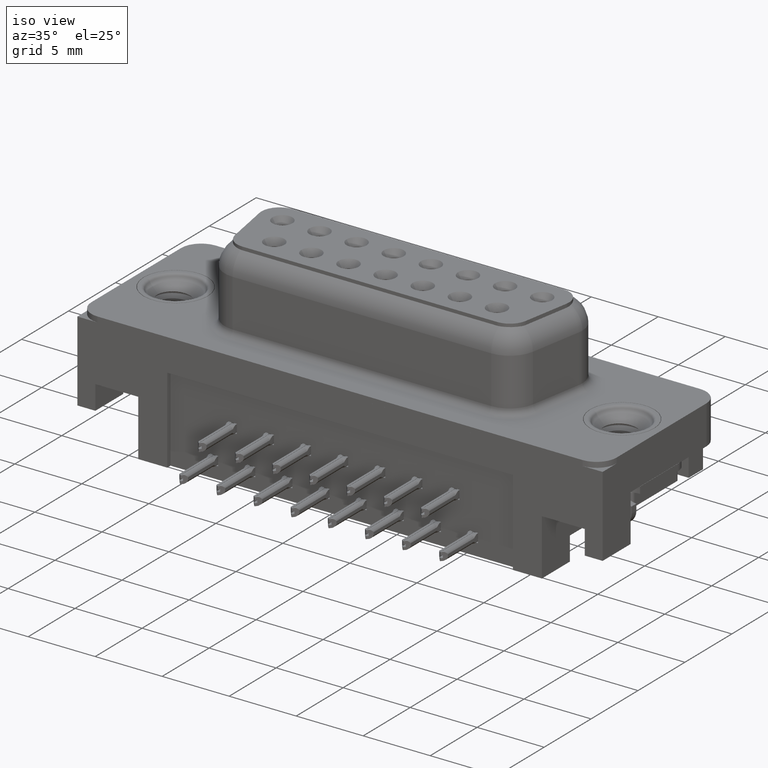
[diagram: clean part render]
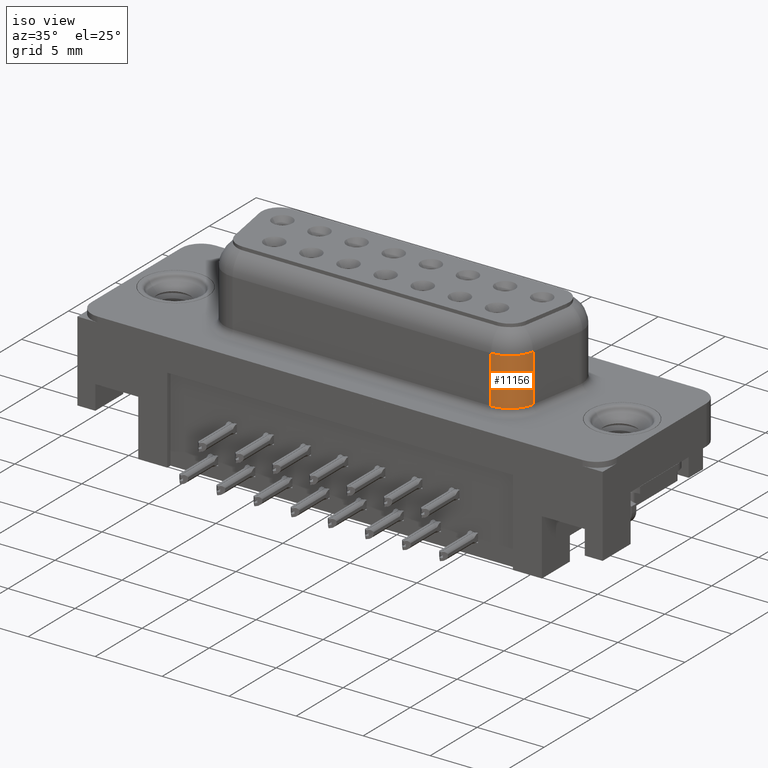
[diagram: same view with one face highlighted and labeled with its STEP entity id]
A machine part, iso view. The second image highlights one B-rep face of the part: STEP entity #11156.
In plain terms, the highlighted cylindrical surface (edge-blend (fillet) strip) has radius 2 mm, axis along (-0, -0, -1).
Its self-contained STEP definition (entity closure, byte-faithful):
#156 = DIRECTION ( 'NONE',  ( -0.0000000000000000000, -0.0000000000000000000, -1.000000000000000000 ) ) ;
#283 = CYLINDRICAL_SURFACE ( 'NONE', #23465, 2.000000000000001800 ) ;
#826 = AXIS2_PLACEMENT_3D ( 'NONE', #12150, #156, #14157 ) ;
#2239 = DIRECTION ( 'NONE',  ( 0.0000000000000000000, 0.0000000000000000000, 1.000000000000000000 ) ) ;
#2575 = CIRCLE ( 'NONE', #15882, 2.000000000000001800 ) ;
#3416 = CARTESIAN_POINT ( 'NONE',  ( 26.30232477523700800, -1.950000000000005500, 6.200000000000000200 ) ) ;
#3489 = EDGE_CURVE ( 'NONE', #13168, #6925, #19374, .T. ) ;
#4594 = CARTESIAN_POINT ( 'NONE',  ( 28.27194028126142900, -2.297296355333852800, 0.8999999999999998000 ) ) ;
#5657 = CIRCLE ( 'NONE', #826, 2.000000000000001800 ) ;
#6743 = CARTESIAN_POINT ( 'NONE',  ( 26.30232477523700800, -3.950000000000006400, 4.450000000000000200 ) ) ;
#6925 = VERTEX_POINT ( 'NONE', #7867 ) ;
#7867 = CARTESIAN_POINT ( 'NONE',  ( 26.30232477523700800, -3.950000000000006400, 0.8999999999999998000 ) ) ;
#8251 = EDGE_CURVE ( 'NONE', #6925, #8384, #2575, .T. ) ;
#8384 = VERTEX_POINT ( 'NONE', #4594 ) ;
#8712 = VECTOR ( 'NONE', #25204, 1000.000000000000000 ) ;
#9278 = LINE ( 'NONE', #18928, #13956 ) ;
#9901 = EDGE_CURVE ( 'NONE', #18209, #13168, #5657, .T. ) ;
#11156 = ADVANCED_FACE ( 'NONE', ( #21597 ), #283, .T. ) ;
#12150 = CARTESIAN_POINT ( 'NONE',  ( 26.30232477523700800, -1.950000000000005500, 4.450000000000000200 ) ) ;
#13168 = VERTEX_POINT ( 'NONE', #6743 ) ;
#13376 = EDGE_LOOP ( 'NONE', ( #23061, #25904, #20944, #13725 ) ) ;
#13477 = DIRECTION ( 'NONE',  ( -1.000000000000000000, 0.0000000000000000000, 0.0000000000000000000 ) ) ;
#13725 = ORIENTED_EDGE ( 'NONE', *, *, #8251, .T. ) ;
#13956 = VECTOR ( 'NONE', #24835, 1000.000000000000000 ) ;
#14157 = DIRECTION ( 'NONE',  ( -1.000000000000000000, 0.0000000000000000000, 0.0000000000000000000 ) ) ;
#14242 = CARTESIAN_POINT ( 'NONE',  ( 26.30232477523700800, -1.950000000000005500, 0.8999999999999998000 ) ) ;
#15882 = AXIS2_PLACEMENT_3D ( 'NONE', #14242, #2239, #16264 ) ;
#16264 = DIRECTION ( 'NONE',  ( 1.000000000000000000, 0.0000000000000000000, 0.0000000000000000000 ) ) ;
#17182 = CARTESIAN_POINT ( 'NONE',  ( 28.27194028126142900, -2.297296355333852800, 4.450000000000000200 ) ) ;
#18079 = EDGE_CURVE ( 'NONE', #18209, #8384, #9278, .T. ) ;
#18209 = VERTEX_POINT ( 'NONE', #17182 ) ;
#18928 = CARTESIAN_POINT ( 'NONE',  ( 28.27194028126142900, -2.297296355333852800, 6.200000000000000200 ) ) ;
#19374 = LINE ( 'NONE', #21089, #8712 ) ;
#20944 = ORIENTED_EDGE ( 'NONE', *, *, #3489, .T. ) ;
#21089 = CARTESIAN_POINT ( 'NONE',  ( 26.30232477523700800, -3.950000000000006400, 6.200000000000000200 ) ) ;
#21597 = FACE_OUTER_BOUND ( 'NONE', #13376, .T. ) ;
#23061 = ORIENTED_EDGE ( 'NONE', *, *, #18079, .F. ) ;
#23465 = AXIS2_PLACEMENT_3D ( 'NONE', #3416, #25461, #13477 ) ;
#24835 = DIRECTION ( 'NONE',  ( -0.0000000000000000000, -0.0000000000000000000, -1.000000000000000000 ) ) ;
#25204 = DIRECTION ( 'NONE',  ( -0.0000000000000000000, -0.0000000000000000000, -1.000000000000000000 ) ) ;
#25461 = DIRECTION ( 'NONE',  ( -0.0000000000000000000, -0.0000000000000000000, -1.000000000000000000 ) ) ;
#25904 = ORIENTED_EDGE ( 'NONE', *, *, #9901, .T. ) ;